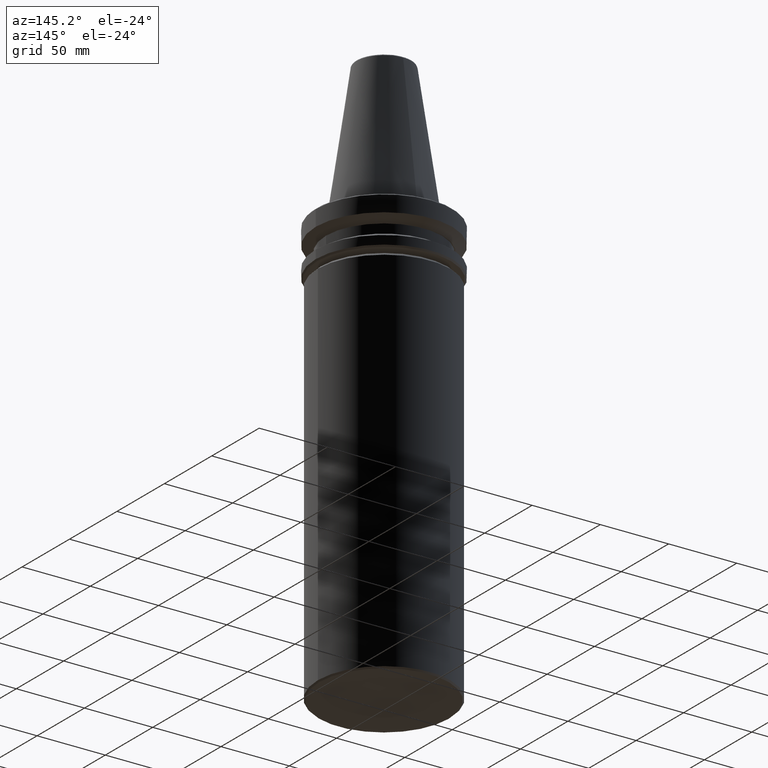
[diagram: clean part render]
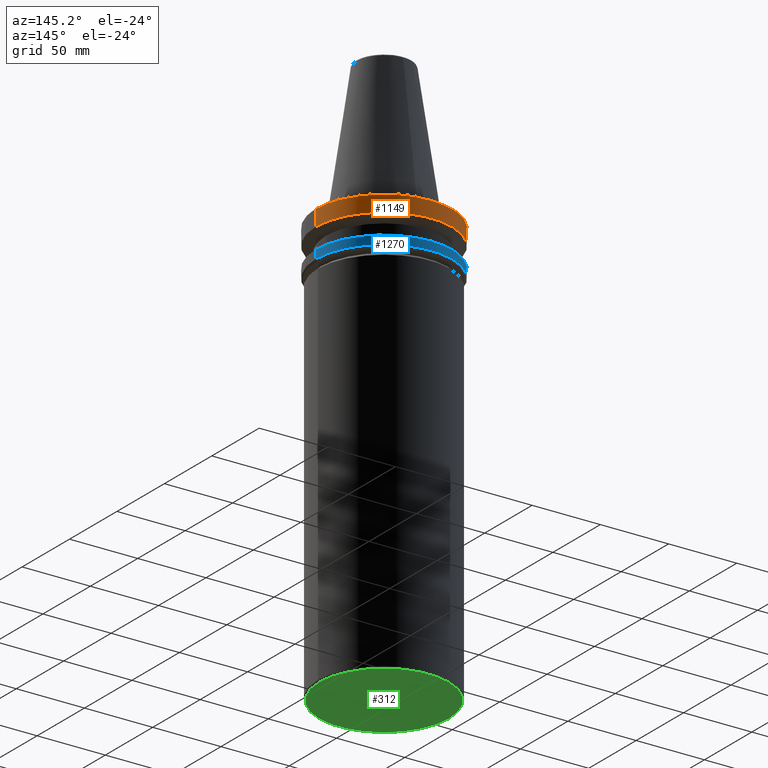
[diagram: same view with three faces highlighted in distinct colors, each labeled with its STEP entity id]
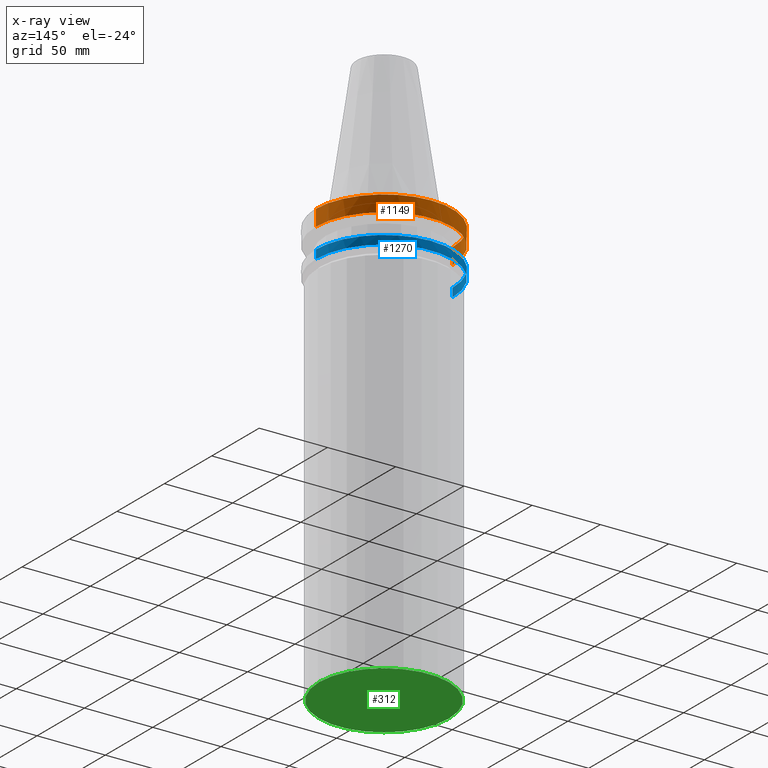
[diagram: x-ray of the same camera — body ghosted, the three highlighted faces saturated]
A machine part, auxiliary view with three faces highlighted in distinct colors.
The next image is the same camera in x-ray (body ghosted, the three faces saturated) — at least one of them is partly hidden behind the body in this view.
Their STEP definitions:

[orange] entity #1149 — the highlighted cylindrical surface (partial cylindrical patch) has radius 50 mm, axis along (0, 0, 1).
#41 = VERTEX_POINT ( 'NONE', #945 ) ;
#68 = ORIENTED_EDGE ( 'NONE', *, *, #889, .F. ) ;
#91 = VERTEX_POINT ( 'NONE', #523 ) ;
#120 = DIRECTION ( 'NONE',  ( 0.0000000000000000000, 0.0000000000000000000, 1.000000000000000000 ) ) ;
#139 = CARTESIAN_POINT ( 'NONE',  ( -50.00000000000000000, 6.123233995736766100E-015, -15.70022000322675400 ) ) ;
#207 = LINE ( 'NONE', #1179, #434 ) ;
#208 = CARTESIAN_POINT ( 'NONE',  ( -50.00000000000000000, 6.123233995736766100E-015, -3.999999999999989800 ) ) ;
#222 = CARTESIAN_POINT ( 'NONE',  ( 0.0000000000000000000, 0.0000000000000000000, 124.5046326327850600 ) ) ;
#234 = EDGE_CURVE ( 'NONE', #676, #41, #664, .T. ) ;
#237 = VERTEX_POINT ( 'NONE', #208 ) ;
#262 = AXIS2_PLACEMENT_3D ( 'NONE', #222, #120, #1008 ) ;
#289 = ORIENTED_EDGE ( 'NONE', *, *, #300, .T. ) ;
#300 = EDGE_CURVE ( 'NONE', #474, #237, #1265, .T. ) ;
#356 = CARTESIAN_POINT ( 'NONE',  ( 50.00000000000000000, 0.0000000000000000000, -3.999999999999989800 ) ) ;
#386 = FACE_OUTER_BOUND ( 'NONE', #1291, .T. ) ;
#392 = CARTESIAN_POINT ( 'NONE',  ( -50.00000000000000000, 6.123233995736766100E-015, 124.5046326327850600 ) ) ;
#394 = AXIS2_PLACEMENT_3D ( 'NONE', #1118, #716, #540 ) ;
#434 = VECTOR ( 'NONE', #1150, 1000.000000000000000 ) ;
#474 = VERTEX_POINT ( 'NONE', #139 ) ;
#503 = ORIENTED_EDGE ( 'NONE', *, *, #234, .F. ) ;
#523 = CARTESIAN_POINT ( 'NONE',  ( 50.00000000000000000, 0.0000000000000000000, -15.70022000322675400 ) ) ;
#540 = DIRECTION ( 'NONE',  ( -1.000000000000000000, 0.0000000000000000000, -3.469446951953614200E-017 ) ) ;
#560 = CARTESIAN_POINT ( 'NONE',  ( 0.0000000000000000000, 0.0000000000000000000, -15.70022000322675400 ) ) ;
#563 = CARTESIAN_POINT ( 'NONE',  ( 0.0000000000000000000, 0.0000000000000000000, -3.999999999999989800 ) ) ;
#596 = ORIENTED_EDGE ( 'NONE', *, *, #674, .F. ) ;
#650 = DIRECTION ( 'NONE',  ( 1.000000000000000000, 0.0000000000000000000, 0.0000000000000000000 ) ) ;
#664 = CIRCLE ( 'NONE', #394, 50.00000000000000000 ) ;
#673 = ORIENTED_EDGE ( 'NONE', *, *, #884, .F. ) ;
#674 = EDGE_CURVE ( 'NONE', #474, #91, #1136, .T. ) ;
#676 = VERTEX_POINT ( 'NONE', #356 ) ;
#716 = DIRECTION ( 'NONE',  ( -0.0000000000000000000, -0.0000000000000000000, 1.000000000000000000 ) ) ;
#884 = EDGE_CURVE ( 'NONE', #41, #237, #1293, .T. ) ;
#888 = DIRECTION ( 'NONE',  ( 0.0000000000000000000, 0.0000000000000000000, 1.000000000000000000 ) ) ;
#889 = EDGE_CURVE ( 'NONE', #91, #676, #207, .T. ) ;
#895 = AXIS2_PLACEMENT_3D ( 'NONE', #563, #1288, #1042 ) ;
#945 = CARTESIAN_POINT ( 'NONE',  ( 0.0000000000000000000, 50.00000000000000000, -3.999999999999989800 ) ) ;
#979 = VECTOR ( 'NONE', #888, 1000.000000000000000 ) ;
#1008 = DIRECTION ( 'NONE',  ( 1.000000000000000000, 0.0000000000000000000, 0.0000000000000000000 ) ) ;
#1042 = DIRECTION ( 'NONE',  ( -1.000000000000000000, -8.881784197001252300E-016, -3.469446951953614200E-017 ) ) ;
#1106 = CYLINDRICAL_SURFACE ( 'NONE', #262, 50.00000000000000000 ) ;
#1118 = CARTESIAN_POINT ( 'NONE',  ( 0.0000000000000000000, 0.0000000000000000000, -3.999999999999989800 ) ) ;
#1136 = CIRCLE ( 'NONE', #1307, 50.00000000000000000 ) ;
#1149 = ADVANCED_FACE ( 'NONE', ( #386 ), #1106, .T. ) ;
#1150 = DIRECTION ( 'NONE',  ( 0.0000000000000000000, 0.0000000000000000000, 1.000000000000000000 ) ) ;
#1179 = CARTESIAN_POINT ( 'NONE',  ( 50.00000000000000000, 0.0000000000000000000, 124.5046326327850600 ) ) ;
#1265 = LINE ( 'NONE', #392, #979 ) ;
#1282 = DIRECTION ( 'NONE',  ( -0.0000000000000000000, -0.0000000000000000000, -1.000000000000000000 ) ) ;
#1288 = DIRECTION ( 'NONE',  ( -0.0000000000000000000, -0.0000000000000000000, 1.000000000000000000 ) ) ;
#1291 = EDGE_LOOP ( 'NONE', ( #596, #289, #673, #503, #68 ) ) ;
#1293 = CIRCLE ( 'NONE', #895, 50.00000000000000000 ) ;
#1307 = AXIS2_PLACEMENT_3D ( 'NONE', #560, #1282, #650 ) ;

[blue] entity #1270 — the highlighted cylindrical surface (partial cylindrical patch) has radius 50 mm, axis along (0, 0, 1).
#22 = EDGE_LOOP ( 'NONE', ( #456, #510, #1004, #918, #602 ) ) ;
#61 = CARTESIAN_POINT ( 'NONE',  ( 50.00000000000000000, 0.0000000000000000000, -30.69977999677324500 ) ) ;
#145 = CARTESIAN_POINT ( 'NONE',  ( 0.0000000000000000000, 0.0000000000000000000, 124.5046326327850600 ) ) ;
#160 = CIRCLE ( 'NONE', #482, 50.00000000000000000 ) ;
#168 = AXIS2_PLACEMENT_3D ( 'NONE', #370, #1086, #472 ) ;
#224 = CARTESIAN_POINT ( 'NONE',  ( 0.0000000000000000000, 0.0000000000000000000, -37.00000000000002100 ) ) ;
#265 = CIRCLE ( 'NONE', #295, 50.00000000000000000 ) ;
#268 = VERTEX_POINT ( 'NONE', #984 ) ;
#295 = AXIS2_PLACEMENT_3D ( 'NONE', #314, #1018, #408 ) ;
#314 = CARTESIAN_POINT ( 'NONE',  ( 0.0000000000000000000, 0.0000000000000000000, -30.69977999677324500 ) ) ;
#322 = DIRECTION ( 'NONE',  ( 1.000000000000000000, 0.0000000000000000000, 0.0000000000000000000 ) ) ;
#324 = VECTOR ( 'NONE', #1144, 1000.000000000000000 ) ;
#370 = CARTESIAN_POINT ( 'NONE',  ( 0.0000000000000000000, 0.0000000000000000000, -30.69977999677324500 ) ) ;
#408 = DIRECTION ( 'NONE',  ( 1.000000000000000000, 0.0000000000000000000, 0.0000000000000000000 ) ) ;
#411 = CARTESIAN_POINT ( 'NONE',  ( -50.00000000000000000, 6.123233995736766100E-015, -30.69977999677324500 ) ) ;
#420 = VERTEX_POINT ( 'NONE', #700 ) ;
#456 = ORIENTED_EDGE ( 'NONE', *, *, #1059, .F. ) ;
#462 = EDGE_CURVE ( 'NONE', #420, #1276, #910, .T. ) ;
#472 = DIRECTION ( 'NONE',  ( 1.000000000000000000, 0.0000000000000000000, 0.0000000000000000000 ) ) ;
#482 = AXIS2_PLACEMENT_3D ( 'NONE', #224, #914, #322 ) ;
#510 = ORIENTED_EDGE ( 'NONE', *, *, #671, .T. ) ;
#533 = EDGE_CURVE ( 'NONE', #268, #1276, #265, .T. ) ;
#546 = CARTESIAN_POINT ( 'NONE',  ( -50.00000000000000000, 6.123233995736766100E-015, -37.00000000000002100 ) ) ;
#587 = VECTOR ( 'NONE', #951, 1000.000000000000000 ) ;
#602 = ORIENTED_EDGE ( 'NONE', *, *, #462, .F. ) ;
#667 = CYLINDRICAL_SURFACE ( 'NONE', #1280, 50.00000000000000000 ) ;
#671 = EDGE_CURVE ( 'NONE', #931, #1056, #847, .T. ) ;
#700 = CARTESIAN_POINT ( 'NONE',  ( 50.00000000000000000, 0.0000000000000000000, -37.00000000000002100 ) ) ;
#827 = DIRECTION ( 'NONE',  ( 1.000000000000000000, 0.0000000000000000000, 0.0000000000000000000 ) ) ;
#847 = LINE ( 'NONE', #1168, #587 ) ;
#890 = CARTESIAN_POINT ( 'NONE',  ( 50.00000000000000000, 0.0000000000000000000, 124.5046326327850600 ) ) ;
#910 = LINE ( 'NONE', #890, #324 ) ;
#914 = DIRECTION ( 'NONE',  ( -0.0000000000000000000, -0.0000000000000000000, -1.000000000000000000 ) ) ;
#918 = ORIENTED_EDGE ( 'NONE', *, *, #533, .T. ) ;
#931 = VERTEX_POINT ( 'NONE', #546 ) ;
#951 = DIRECTION ( 'NONE',  ( 0.0000000000000000000, 0.0000000000000000000, 1.000000000000000000 ) ) ;
#977 = FACE_OUTER_BOUND ( 'NONE', #22, .T. ) ;
#984 = CARTESIAN_POINT ( 'NONE',  ( 0.0000000000000000000, 50.00000000000000000, -30.69977999677324500 ) ) ;
#1004 = ORIENTED_EDGE ( 'NONE', *, *, #1310, .T. ) ;
#1018 = DIRECTION ( 'NONE',  ( -0.0000000000000000000, -0.0000000000000000000, -1.000000000000000000 ) ) ;
#1051 = DIRECTION ( 'NONE',  ( 0.0000000000000000000, 0.0000000000000000000, 1.000000000000000000 ) ) ;
#1056 = VERTEX_POINT ( 'NONE', #411 ) ;
#1059 = EDGE_CURVE ( 'NONE', #931, #420, #160, .T. ) ;
#1086 = DIRECTION ( 'NONE',  ( -0.0000000000000000000, -0.0000000000000000000, -1.000000000000000000 ) ) ;
#1144 = DIRECTION ( 'NONE',  ( 0.0000000000000000000, 0.0000000000000000000, 1.000000000000000000 ) ) ;
#1161 = CIRCLE ( 'NONE', #168, 50.00000000000000000 ) ;
#1168 = CARTESIAN_POINT ( 'NONE',  ( -50.00000000000000000, 6.123233995736766100E-015, 124.5046326327850600 ) ) ;
#1270 = ADVANCED_FACE ( 'NONE', ( #977 ), #667, .T. ) ;
#1276 = VERTEX_POINT ( 'NONE', #61 ) ;
#1280 = AXIS2_PLACEMENT_3D ( 'NONE', #145, #1051, #827 ) ;
#1310 = EDGE_CURVE ( 'NONE', #1056, #268, #1161, .T. ) ;

[green] entity #312 — the highlighted planar face has unit normal (0, 0, 1).
#35 = DIRECTION ( 'NONE',  ( 1.000000000000000000, 0.0000000000000000000, 0.0000000000000000000 ) ) ;
#39 = CARTESIAN_POINT ( 'NONE',  ( -47.50000000000016300, 5.878304635907303700E-015, -315.0000000000000000 ) ) ;
#148 = AXIS2_PLACEMENT_3D ( 'NONE', #1226, #600, #35 ) ;
#189 = ORIENTED_EDGE ( 'NONE', *, *, #1016, .T. ) ;
#245 = CARTESIAN_POINT ( 'NONE',  ( 0.0000000000000000000, 0.0000000000000000000, -315.0000000000000000 ) ) ;
#301 = CARTESIAN_POINT ( 'NONE',  ( 0.0000000000000000000, 38.00000000000000000, -315.0000000000000000 ) ) ;
#312 = ADVANCED_FACE ( 'NONE', ( #1156 ), #629, .F. ) ;
#345 = DIRECTION ( 'NONE',  ( 1.000000000000000000, 0.0000000000000000000, 0.0000000000000000000 ) ) ;
#515 = EDGE_LOOP ( 'NONE', ( #1297, #189 ) ) ;
#552 = DIRECTION ( 'NONE',  ( 1.000000000000000000, 0.0000000000000000000, -0.0000000000000000000 ) ) ;
#600 = DIRECTION ( 'NONE',  ( -0.0000000000000000000, -0.0000000000000000000, -1.000000000000000000 ) ) ;
#629 = PLANE ( 'NONE',  #1152 ) ;
#844 = AXIS2_PLACEMENT_3D ( 'NONE', #245, #932, #345 ) ;
#855 = VERTEX_POINT ( 'NONE', #1070 ) ;
#932 = DIRECTION ( 'NONE',  ( -0.0000000000000000000, -0.0000000000000000000, -1.000000000000000000 ) ) ;
#1016 = EDGE_CURVE ( 'NONE', #1159, #855, #1269, .T. ) ;
#1070 = CARTESIAN_POINT ( 'NONE',  ( 47.50000000000016300, 0.0000000000000000000, -315.0000000000000000 ) ) ;
#1152 = AXIS2_PLACEMENT_3D ( 'NONE', #301, #1164, #552 ) ;
#1156 = FACE_OUTER_BOUND ( 'NONE', #515, .T. ) ;
#1159 = VERTEX_POINT ( 'NONE', #39 ) ;
#1164 = DIRECTION ( 'NONE',  ( 0.0000000000000000000, 0.0000000000000000000, 1.000000000000000000 ) ) ;
#1226 = CARTESIAN_POINT ( 'NONE',  ( 0.0000000000000000000, 0.0000000000000000000, -315.0000000000000000 ) ) ;
#1252 = EDGE_CURVE ( 'NONE', #855, #1159, #1263, .T. ) ;
#1263 = CIRCLE ( 'NONE', #844, 47.50000000000016300 ) ;
#1269 = CIRCLE ( 'NONE', #148, 47.50000000000016300 ) ;
#1297 = ORIENTED_EDGE ( 'NONE', *, *, #1252, .T. ) ;